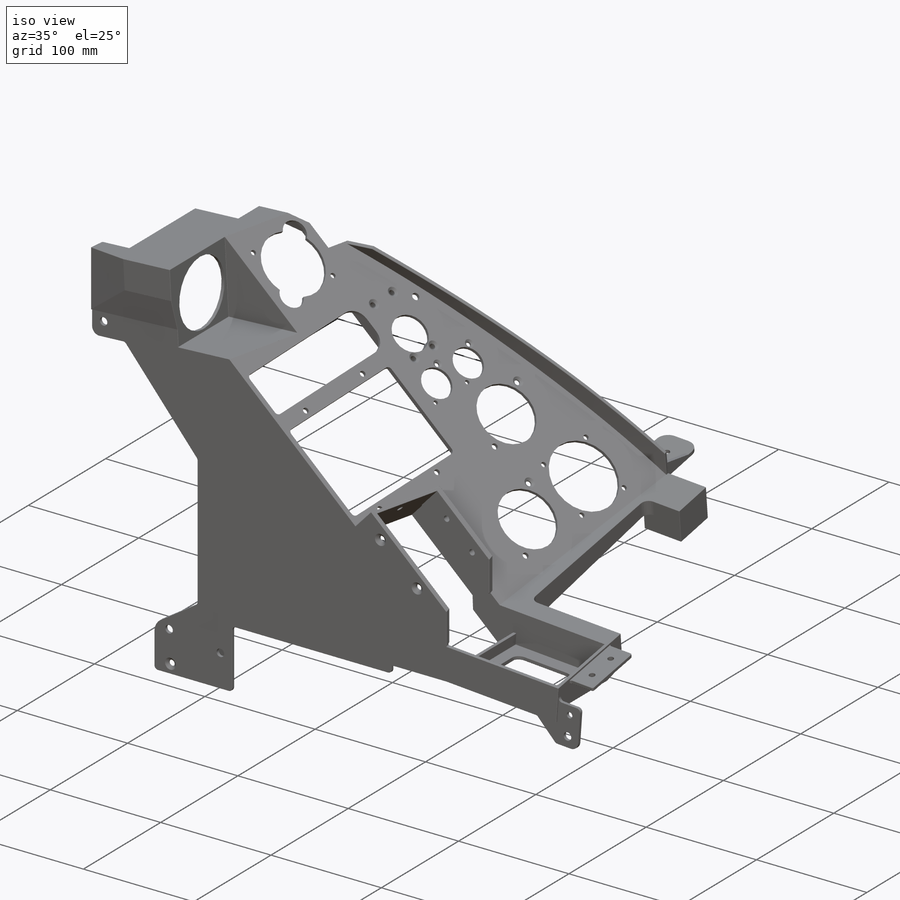
[diagram: iso view]
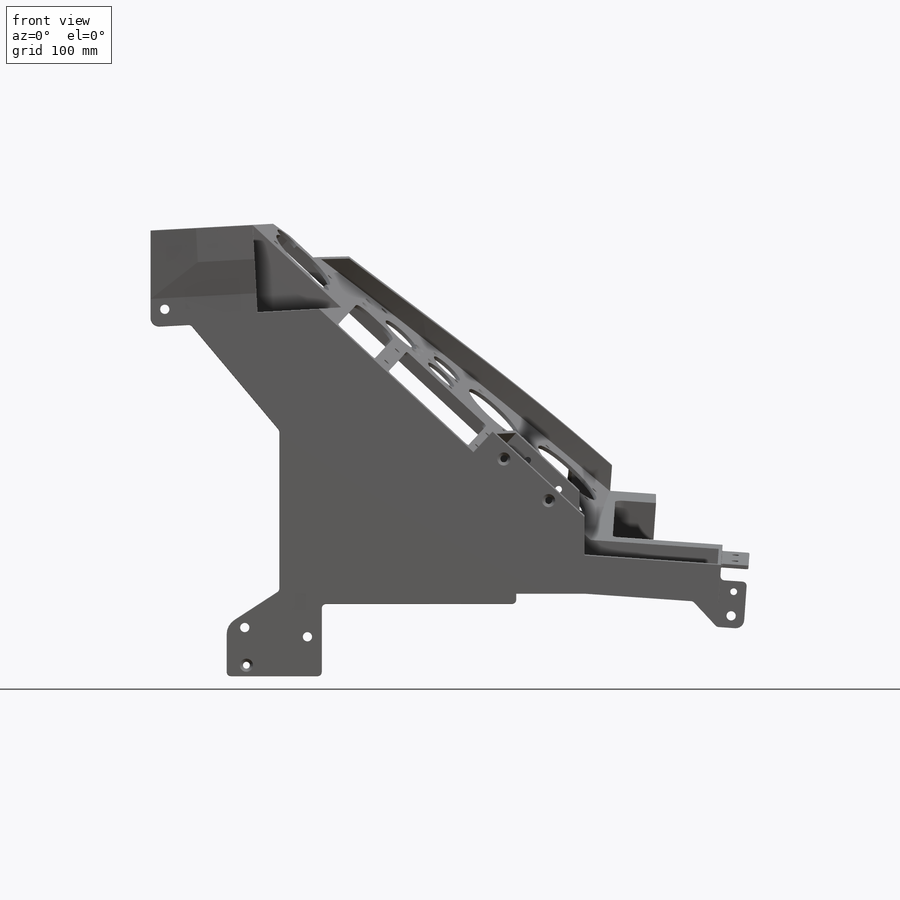
[diagram: front view]
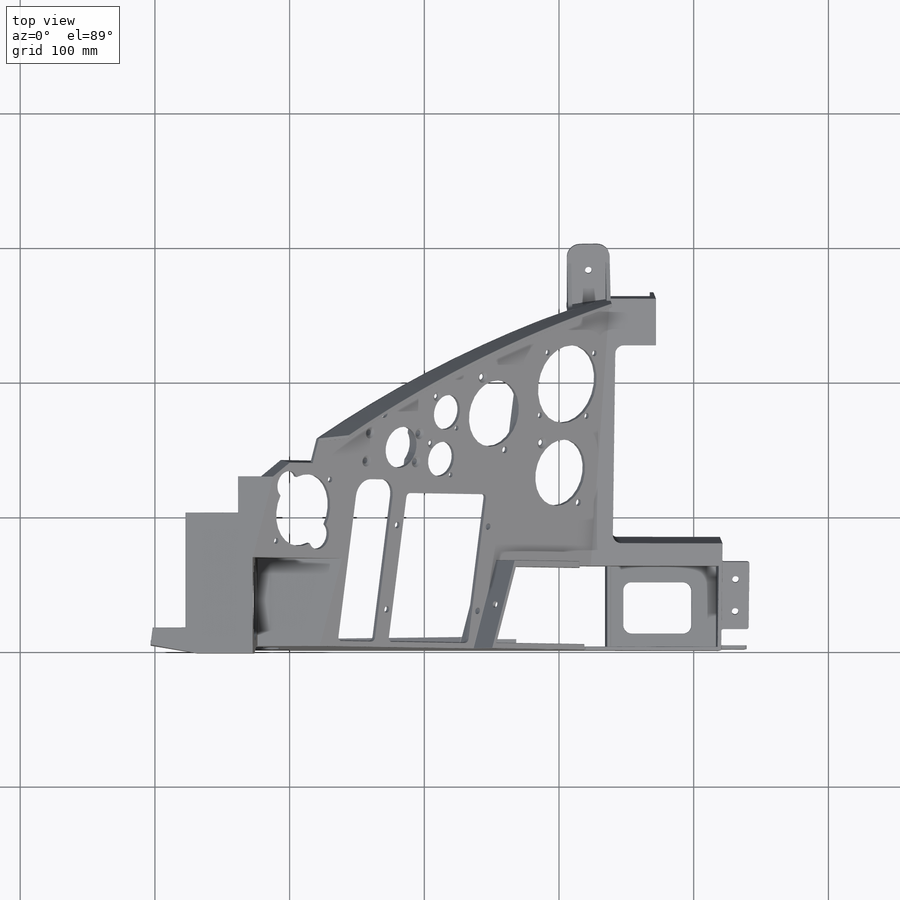
[diagram: top view]
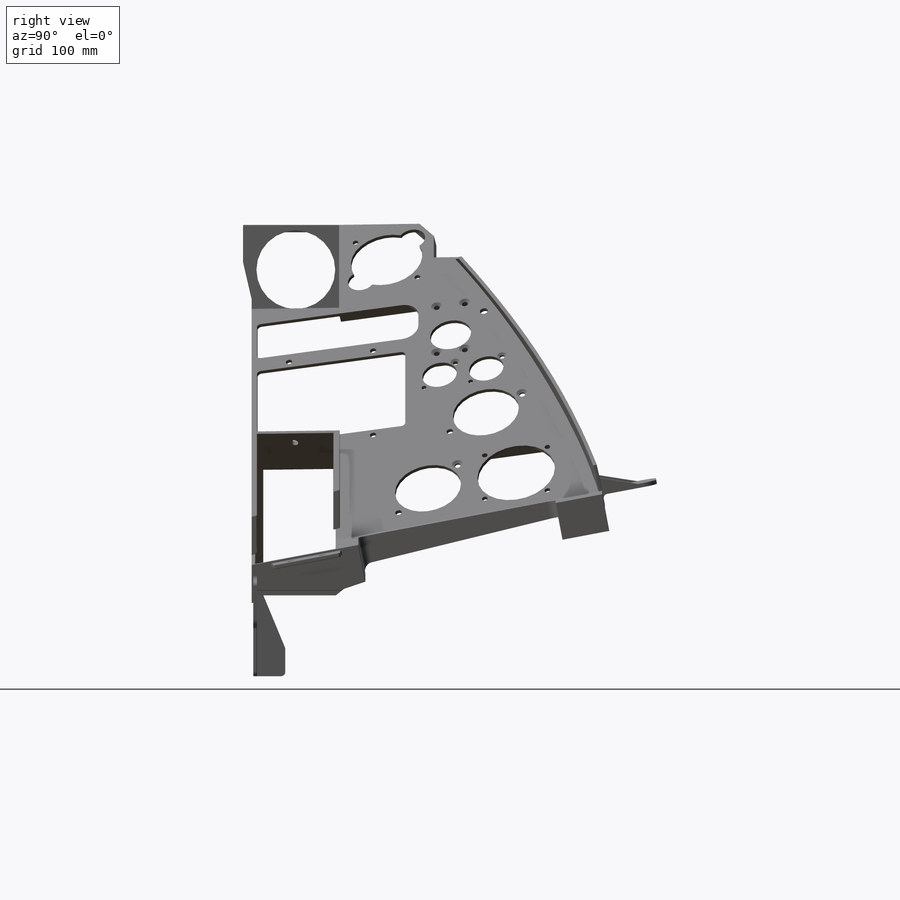
[diagram: right view]
SOLIDWORKS PART (.sldprt)
format: sldprt  version: not decoded by parser v0  size: 3,866,624 bytes
history: native  units: mm
features: sketch x111, fillet x45, extrude x38, cut_extrude x36, plane x34, hole x6, material x1, shell x1 (+23 scaffold rows collapsed)
feature tree (295):
  scaffold x23  (default folders/planes/origin — collapsed)
  material  "6061-T6 (SS)"
  sketch  "Sketch1"  dims[c1.D1=219.075mm c1.D2=211.963mm c1.D3=219.075mm c1.D6=211.963mm c2.D6=40.0deg c2.D10=183.388mm c3.D10=226.0deg c3.D11=196.85mm c4.D11=~42.972339deg c5.D11=~50.636507mm c6.D11=~97.884509deg c7.D11=~51.119763mm c8.D11=90.0deg c8.D8=64.8843mm c8.D13=~143.740842mm c9.D13=90.0deg c9.D7=64.8843mm c10.D7=270.0deg c10.D6=~184.174159mm c11.D6=40.0deg c11.D7=~46.171927mm c12.D7=90.0deg c12.D9=64.8843mm c13.D9=90.0deg c13.D11=~75.920611mm c14.D11=~93.027661deg c14.D2=211.455mm c15.D11=~22.864984mm c15.D2=196.85mm c16.D2=~317.106921deg c17.D2=196.85mm c18.D2=~42.893079deg c18.D11=~75.834013mm c19.D11=~93.106921deg c20.D11=101.6mm c20.D12=101.6mm c21.D12=~35.469793deg c22.D12=~13.12658mm c23.D12=176.0deg c23.D3=28.575mm c23.D4=22.225mm c23.D5=123.825mm c23.D7=46.1645mm c23.D8=64.8335mm c23.D9=78.3082mm c24.D12=46.1645mm c24.D9=78.2574mm c24.D7=78.2574mm c24.D13=21.1201mm]
  sketch  "3DSketch3"  dims[c1.D1=~59.225985mm c2.D1=~29.584253deg c2.D2=10.0deg]
  plane  "Plane10"
  sketch  "Sketch18"  dims[c1.D1=~20.219445mm c2.D1=10.4deg]
  plane  "Plane13"
  sketch  "Sketch27"
  plane  "Plane14"
  sketch  "Sketch28"  dims[c1.D1=~103.071212mm c2.D1=10.68deg]
  sketch  "Sketch29"  dims[D1=0.0mm D2=0.0mm D3=0.0mm D4=50.8mm]
  extrude  "Main Solid Extrusion"  Depth=264.668mm
  sketch  "Sketch30"  dims[D1=0.0mm]
  extrude  "Bottom Solid Extrusion"  [1 undecoded]
  sketch  "Sketch32"
  cut_extrude  "Top Solid Extrusion"  [1 undecoded]
  sketch  "Sketch31"  dims[D2=64.8843mm D1=0.0mm]
  extrude  "Compass Solid Extrusion"  [1 undecoded]
  sketch  "Sketch33"  dims[D1=0.0mm D2=12.7mm]
  cut_extrude  "Compass Cut"  [1 undecoded]
  sketch  "Sketch42"  dims[c1.D3=~65.506174mm c2.D3=10.0deg c2.D4=~68.759082mm c3.D4=10.0deg c3.D5=~268.691304mm c4.D4=~67.445651mm c4.D3=~92.526105mm c5.D3=100.0deg c5.D4=112.8014mm c5.D5=~112.64689mm c6.D5=80.0deg c7.D5=~67.445651mm c8.D5=10.0deg c8.D1=66.421mm c8.D2=0.0mm c9.D5=112.0394mm c9.D2=0.0mm]
  extrude  "Stick Seat Extrusion"  Depth=20.828mm
  sketch  "Sketch55"  dims[D1=0.0mm D2=0.0mm]
  cut_extrude  "Extrude27"  [1 undecoded]
  sketch  "Sketch57"  dims[D1=17.7165mm D2=81.7372mm D3=0.0mm D4=148.8821mm]
  cut_extrude  "Extrude29"  [1 undecoded]
  sketch  "Sketch60"
  cut_extrude  "Extrude31"  [1 undecoded]
  plane  "Compass Bump Plane"  Offset=6.35mm
  sketch  "Sketch62"  dims[D1=0.0mm D2=25.4mm D3=42.2021mm D4=0.0mm]
  sketch  "Sketch63"  dims[D1=0.0mm]
  sketch  "3DSketch5"
  sketch  "Sketch66"  dims[D4=39.116mm D1=50.0126mm D2=104.2797mm D3=19.05mm D5=0.0mm D6=2.54mm D7=12.7mm]
  cut_extrude  "Extrude34"  [1 undecoded]
  sketch  "Sketch73"  dims[D1=34.4424mm]
  cut_extrude  "Extrude45"  [1 undecoded]
  shell  "Shell3"  Thickness=2.794mm
  plane  "Plane15"
  sketch  "Sketch83"  dims[D1=20.32mm D2=12.7mm]
  cut_extrude  "Extrude62"  [1 undecoded]
  sketch  "Sketch56"  dims[c1.D1=0.0mm c1.D2=0.0mm c1.D3=0.0mm c2.D1=0.0mm c2.D2=0.0mm]
  cut_extrude  "Extrude28"  [1 undecoded]
  sketch  "3DSketch4"
  cut_extrude  "Extrude26"  [1 undecoded]
  sketch  "Sketch64"  dims[c1.D1=58.5089mm c1.D2=58.5089mm c1.D3=58.5089mm c2.D2=~33.31845mm c2.D3=32.131mm]
  cut_extrude  "Compass Hole cut"  [1 undecoded]
  sketch  "Sketch70"  dims[D1=19.05mm D2=15.875mm D3=84.4804mm D4=2.794mm D5=6.35mm D6=2.794mm]
  extrude  "Extrude47"  [1 undecoded]
  sketch  "Sketch75"
  cut_extrude  "Extrude48"  [1 undecoded]
  sketch  "Sketch77"  dims[D1=2.794mm]
  extrude  "Extrude56"  [1 undecoded]
  sketch  "Sketch79"
  extrude  "Extrude57"  [1 undecoded]
  sketch  "Sketch80"
  extrude  "Extrude58"  Depth=2.794mm
  sketch  "Sketch81"  dims[c1.D2=~22.516234mm c2.D2=~47.106921deg c2.D1=~32.767376mm c3.D1=45.0deg c4.D1=15.875mm]
  extrude  "Extrude59"  Depth=2.794mm
  sketch  "Sketch82"  dims[D1=12.7mm D2=12.7mm D3=38.1mm D4=50.8mm]
  cut_extrude  "Extrude60"  [1 undecoded]
  plane  "Plane1 Grid Vertical Measurement"
  plane  "Plane Normal 0"
  plane  "Plane Normal # 0.5"  Offset=12.7mm
  plane  "Plane Normal #1"  Offset=25.4mm
  plane  "Plane Normal #1.5"  Offset=38.1mm
  plane  "Plane Normal #2.0"  Offset=50.8mm
  plane  "Plane Normal #2.5"  Offset=63.5mm
  plane  "Plane Normal #3.0"  Offset=76.2mm
  plane  "Plane Normal #3.5"  Offset=88.9mm
  plane  "Plane Normal #4.0"  Offset=101.6mm
  plane  "Plane Normal #4.5"  Offset=114.3mm
  plane  "Plane Normal #5.0"  Offset=127mm
  plane  "Plane Normal #5.5"  Offset=139.7mm
  plane  "Plane Normal #6.0"  Offset=152.4mm
  plane  "Plane Normal #6.5"  Offset=165.1mm
  plane  "Plane Normal #7.0"  Offset=177.8mm
  plane  "Plane Normal #-0.5"  Offset=12.7mm
  plane  "Plane Normal #-1.0"  Offset=25.4mm
  plane  "Plane Normal #-1.5"  Offset=38.1mm
  plane  "Plane Normal #-2.0"  Offset=50.8mm
  plane  "Plane Normal #-2.5"  Offset=63.5mm
  plane  "Plane Normal #-3.0"  Offset=76.2mm
  plane  "Plane Normal #-3.5"  Offset=88.9mm
  sketch  "Grid Vertical Measurement"  dims[c1.D1=234.6452mm c1.D2=232.6132mm c1.D3=232.6132mm c2.D2=238.3028mm c2.D3=242.5065mm c2.D4=246.2149mm c2.D5=249.5677mm c2.D6=253.365mm c2.D7=256.3241mm c2.D8=259.3975mm c2.D9=263.9441mm c2.D10=229.5525mm c2.D11=225.0313mm c2.D12=220.7387mm c2.D13=214.7316mm c2.D14=209.7405mm c2.D15=204.1144mm c2.D16=198.9074mm c2.D17=193.4591mm c2.D18=188.1886mm c2.D19=182.0545mm c2.D20=175.6537mm c2.D21=168.9735mm c2.D22=163.0172mm c2.D23=156.1338mm c2.D24=163.0172mm c3.D9=153.3652mm c3.D24=153.3652mm c4.D9=153.3652mm c4.D2=12.7mm c4.D23=12.7mm c4.D24=12.7mm c5.D9=4.572mm]
  sketch  "Sketch124"
  cut_extrude  "Main Surface Cut"  [1 undecoded]
  sketch  "Sketch125"  dims[c1.D2=~48.663178mm c2.D2=~131.050469deg c3.D2=~48.663178mm c4.D2=135.0deg c4.D1=71.5645mm]
  cut_extrude  "Extrude91"  [1 undecoded]
  sketch  "Sketch84"  dims[D1=2.794mm]
  sketch  "Sketch85"
  extrude  "Extrude65"  [1 undecoded]
  sketch  "Sketch89"
  extrude  "Extrude92"  [1 undecoded]
  sketch  "Sketch127"  dims[D1=2.794mm]
  sketch  "3DSketch7"
  fillet  "Fillet66"  Radius=6.35mm
  sketch  "Sketch128"
  extrude  "Extrude93"  [1 undecoded]
  sketch  "Sketch110"  dims[c1.D1=31.75mm c1.D2=40.9321mm c1.D3=2.794mm c1.D4=2.794mm c2.D3=2.794mm]
  extrude  "Extrude74"  Depth=3.048mm
  sketch  "Sketch111"
  extrude  "Extrude75"  [1 undecoded]
  sketch  "Sketch112"  dims[D1=12.7mm D2=26.924mm D3=26.924mm]
  extrude  "Extrude76"  Depth=3.048mm
  sketch  "Sketch113"  dims[D1=0.0mm]
  extrude  "Extrude77"  Depth=3.048mm
  fillet  "Fillet1"  Radius=9.525mm
  sketch  "Sketch115"  dims[D1=2.794mm]
  extrude  "Extrude81"  [1 undecoded]
  sketch  "Sketch117"  dims[D1=4.0132mm]
  sketch  "Sketch120"  dims[D1=19.05mm]
  extrude  "Extrude94"  Depth=2.54mm
  sketch  "3DSketch8"
  cut_extrude  "Extrude96"  [1 undecoded]
  fillet  "Fillet4"  Radius=3.175mm
  fillet  "Fillet5"  Radius=3.175mm
  fillet  "Fillet6"  Radius=3.175mm
  fillet  "Fillet7"  Radius=3.175mm
  sketch  "Sketch131"  dims[D1=11.8618mm D2=2.794mm]
  extrude  "Extrude98"  Depth=12.7mm
  sketch  "Sketch135"
  extrude  "Extrude104"  [1 undecoded]
  sketch  "Sketch138"  dims[c1.D1=~21.282142mm c2.D1=45.0deg c3.D1=~18.30576mm c4.D1=45.0deg c5.D1=~14.445307mm c6.D1=45.0deg c7.D1=~17.791405mm c8.D1=45.0deg c8.D2=5.08mm]
  cut_extrude  "Extrude107"  [1 undecoded]
  sketch  "Sketch140"  dims[D1=2.794mm]
  extrude  "Extrude108"  [1 undecoded]
  sketch  "Sketch136"
  extrude  "Extrude105"  [1 undecoded]
  sketch  "Sketch216"
  extrude  "Extrude149"  Depth=4.0767mm
  sketch  "Sketch217"
  extrude  "Extrude150"  Depth=4.6482mm
  sketch  "Sketch221"
  cut_extrude  "Extrude153"  [1 undecoded]
  sketch  "Sketch143"  dims[D1=60.706mm]
  extrude  "Extrude115"  [1 undecoded]
  sketch  "Sketch144"  dims[D1=0.0mm]
  extrude  "Extrude116"  [1 undecoded]
  sketch  "Sketch145"  dims[c1.D1=109.22mm c1.D2=~154.756115mm c1.D3=~14.377907mm c2.D3=30.0deg c2.D4=~147.980868mm c2.D5=5.969mm c3.D4=2.667mm c3.D5=17.8308mm c3.D6=104.14mm c3.D7=2.794mm c3.D1=2.794mm c3.D2=124.0409mm c3.D3=2.794mm c4.D4=2.794mm c4.D1=2.54mm c5.D4=2.794mm]
  extrude  "Extrude117"  Depth=7.5565mm
  sketch  "Sketch146"  dims[c1.D1=~10.037783mm c2.D1=45.0deg c3.D1=~10.686505mm c4.D1=45.0deg]
  cut_extrude  "Extrude118"  [1 undecoded]
  sketch  "Sketch148"  dims[D1=0.0mm]
  extrude  "Extrude122"  [1 undecoded]
  sketch  "Sketch149"  dims[D1=0.0mm]
  extrude  "Extrude123"  [1 undecoded]
  sketch  "Sketch151"  dims[D1=0.0mm]
  extrude  "Extrude124"  [1 undecoded]
  sketch  "Sketch152"  dims[D1=0.0mm]
  extrude  "Extrude125"  [1 undecoded]
  sketch  "Sketch158"
  sketch  "Sketch160"
  extrude  "Extrude129"  [1 undecoded]
  plane  "Tap/Rim Plane"  Offset=1.27mm
  sketch  "Sketch162"  dims[D1=20.8788mm D2=50.8mm D3=2.2352mm D4=23.9014mm D5=17.78mm D6=19.9136mm D7=19.05mm]
  extrude  "Extrude130"  Depth=2.794mm
  sketch  "Sketch164"  dims[D1=2.794mm D2=2.794mm]
  extrude  "Extrude131"  Depth=5.8547mm
  sketch  "Sketch165"  dims[D1=0.0mm]
  extrude  "Extrude132"  [1 undecoded]
  fillet  "Fillet14"  Radius=0.79375mm
  fillet  "Fillet15"  Radius=0.79375mm
  fillet  "Fillet16"  Radius=0.79375mm
  fillet  "Fillet17"  Radius=0.79375mm
  fillet  "Fillet19"  Radius=3.175mm
  sketch  "Sketch166"  dims[D1=2.794mm D2=20.7645mm]
  extrude  "Extrude133"  [1 undecoded]
  plane  "Lower Corner Tab Plane"  Offset=1.9431mm
  sketch  "Sketch227"  dims[D1=20.32mm D2=15.621mm D3=50.8mm]
  extrude  "Extrude157"  Depth=3.0734mm
  fillet  "Fillet20"  Radius=3.175mm
  fillet  "Fillet21"  Radius=12.7mm
  fillet  "Fillet35"  Radius=6.35mm
  fillet  "Fillet36"  Radius=3.175mm
  fillet  "Fillet37"  Radius=6.35mm
  fillet  "Fillet38"  Radius=3.175mm
  fillet  "Fillet39"  Radius=3.175mm
  fillet  "Fillet40"  Radius=0.396875mm
  fillet  "Fillet42"  Radius=6.35mm
  fillet  "Fillet64"  Radius=1.5875mm
  fillet  "Fillet65"  Radius=0.396875mm
  fillet  "Fillet68"  Radius=6.35mm
  sketch  "Sketch211"  dims[D3=6.858mm D1=10.668mm D2=29.2862mm D4=13.4112mm D5=36.1442mm]
  cut_extrude  "Corner Tab Screw Holes"  [1 undecoded]
  hole  "Corner Tab Counter Sink Screw Hole"  Diameter=5.1054mm Depth=2.794mm
  sketch  "3DSketch18"  dims[D1=8.1788mm D2=14.6304mm]
  sketch  "Sketch212"  dims[hole-wizard template sketch: 55 standard entries collapsed; hole parameters kept: c17.Thru Hole Depth=2.794mm c17.Near C'Sink Dia.=9.779mm c17.D4=~3.666174mm c17.Near C'Sink Angle=100.0deg]
  sketch  "Sketch213"  dims[D1=6.858mm D2=10.541mm D3=12.6365mm]
  cut_extrude  "Top Corner Tab Screw Hole"  [1 undecoded]
  sketch  "Sketch214"  dims[D1=5.0038mm D2=19.4818mm]
  cut_extrude  "Outside Corner Tab Screw Hole"  [1 undecoded]
  sketch  "Sketch215"  dims[D3=5.0292mm D4=6.858mm D5=25.9334mm D6=9.9314mm D1=9.271mm D2=7.9502mm]
  cut_extrude  "Lower Corner Tab Screw Holes"  [1 undecoded]
  hole  "Outside Counter Sink for Stick"  Diameter=5.1054mm Depth=4.0767mm
  sketch  "3DSketch19"  dims[D1=9.3472mm D2=9.3472mm D3=20.193mm D4=45.4025mm]
  sketch  "Sketch224"  dims[hole-wizard template sketch: 55 standard entries collapsed; hole parameters kept: c17.Thru Hole Depth=4.0767mm c17.Near C'Sink Dia.=9.779mm c17.D4=~3.666174mm c17.Near C'Sink Angle=100.0deg]
  sketch  "Sketch225"  dims[c1.D3=4.9784mm c1.D4=4.9784mm c1.D5=31.369mm c1.D6=1.0795mm c1.D1=10.16mm c1.D2=22.225mm c2.D3=44.45mm]
  cut_extrude  "Inside Stick Screw Holes"  [1 undecoded]
  sketch  "Sketch226"  dims[c1.D1=4.9784mm c1.D2=~7.712894mm c2.D1=9.525mm c2.D3=~33.892162mm c2.D2=10.4394mm]
  cut_extrude  "Top Stick Screw Hole"  [1 undecoded]
  sketch  "Sketch228"  dims[c1.D1=4.9784mm c1.D2=4.9784mm c2.D1=12.0396mm]
  cut_extrude  "Extrude158"  [1 undecoded]
  plane  "Plane Normal Start"
  plane  "Plane Normal End"
  sketch  "Main Surface Grid"  dims[c1.D1=~234.621382mm c2.D1=90.0deg c2.D2=~12.525081mm]
  sketch  "Side Rim Station Start"  dims[c1.D1=~19.165506mm c2.D1=97.0deg c2.D2=15.3543mm]
  sketch  "Side Rim Station 0"  dims[c1.D1=~94.140158mm c2.D1=90.0deg c2.D2=16.383mm]
  sketch  "Side Rim Station 3.5"  dims[c1.D1=~202.931175mm c2.D1=83.0deg c2.D2=15.3543mm]
  sketch  "Side Rim Station End"  dims[c1.D1=~64.792934mm c2.D1=75.0deg c2.D2=15.3543mm]
  sketch  "3DSketch9"
  sketch  "Sketch181"
  plane  "Plane44"
  plane  "Plane45"  Offset=2.794mm
  sketch  "Sketch189"  dims[c1.D3=111.9378mm c1.D2=6.1468mm c2.D3=80.6958mm c2.D4=10.414mm c2.D1=4.064mm c2.D2=10.414mm c3.D3=111.9378mm]
  cut_extrude  "Caution Light Cutout"  [1 undecoded]
  sketch  "Sketch223"  dims[c1.D2=4.7625mm c1.D3=4.7625mm c1.D4=4.7625mm c1.D5=4.7625mm c1.D1=91.9607mm c2.D2=31.75mm]
  fillet  "Fillet27"  Radius=3.175mm
  sketch  "Sketch190"  dims[c1.D2=37.084mm c1.D3=121.8692mm c1.D1=13.716mm c1.D4=34.8742mm c1.D5=11.0998mm c2.D1=14.0208mm c2.D2=121.8692mm c3.D1=14.0208mm c3.D2=36.8808mm c4.D1=34.8742mm]
  cut_extrude  "FuelSel Cutout"  [1 undecoded]
  fillet  "Fillet25"  Radius=3.175mm
  fillet  "Fillet24"  Radius=12.7mm
  sketch  "FuelSel Screw Hole Sketch"  dims[c1.D4=5.9944mm c1.D3=11.0998mm c2.D4=~30.774299mm c2.D1=50.165mm c2.D2=50.165mm c3.D1=13.716mm c3.D2=34.8742mm c3.D4=25.1206mm]
  sketch  "Sketch202"  dims[D1=5.9944mm]
  cut_extrude  "FuelSel Dzus Hole"  [1 undecoded]
  sketch  "Sketch196"  dims[c1.D2=30.9372mm c1.D1=23.9268mm c2.D2=20.955mm]
  cut_extrude  "Oxygen Flow Cutout"  [1 undecoded]
  sketch  "Sketch203"  dims[c1.D3=30.9372mm c1.D1=35.0774mm c1.D2=12.5222mm c2.D3=3.5814mm c2.D4=12.5222mm]
  extrude  "Oxygen Flow Meter Screw backing block"  Depth=4.7625mm
  hole  "Oxygen Flow Meeter Screw hole"  Diameter=4.4958mm Depth=10.3505mm
  sketch  "3DSketch13"
  sketch  "Sketch201"  dims[hole-wizard template sketch: 55 standard entries collapsed; hole parameters kept: c17.Thru Hole Depth=10.3505mm c17.Near C'Sink Dia.=8.4328mm c17.D4=~3.666174mm c17.Near C'Sink Angle=100.0deg]
  sketch  "Sketch191"  dims[c1.D1=53.975mm c1.D2=20.2057mm c1.D3=20.2057mm c1.D4=66.04mm c1.D5=66.04mm c1.D6=4.2672mm c1.D7=4.2672mm c2.D5=33.02mm c3.D5=45.0deg]
  cut_extrude  "Chronograph Cutout"  [1 undecoded]
  sketch  "Sketch192"  dims[D2=26.035mm D4=26.035mm D6=33.274mm D7=33.274mm D8=3.6322mm D3=25.9207mm D5=35.2171mm D1=30.353mm]
  cut_extrude  "Hydraulic Gauge Cutout"  [1 undecoded]
  sketch  "Hydraulic Gauge Screw Hole Sketch"
  hole  "Hydraulic Gauge Counter Sink Srew Holes"  Diameter=3.7973mm Depth=2.794mm
  sketch  "3DSketch15"
  sketch  "Sketch206"  dims[hole-wizard template sketch: 55 standard entries collapsed; hole parameters kept: c17.Thru Hole Depth=2.794mm c17.Near C'Sink Dia.=7.0866mm c17.D4=~3.666174mm c17.Near C'Sink Angle=100.0deg]
  sketch  "Sketch193"  dims[c1.D2=49.784mm c1.D3=62.6618mm c1.D4=62.6618mm c1.D5=4.9784mm c2.D4=~28.021227mm c3.D4=30.0deg c3.D1=60.8076mm]
  cut_extrude  "Liquid Oxygen Meter Cutout"  [1 undecoded]
  sketch  "Liquid Oxygen Meter Screw Hole Sketch"  dims[c1.D1=62.6618mm c1.D2=~27.691499mm c2.D2=30.0deg]
  hole  "Liquid Oxygen Meter Counter Sink Screw Hole"  Diameter=4.4958mm Depth=2.794mm
  sketch  "3DSketch16"
  sketch  "Sketch208"  dims[hole-wizard template sketch: 55 standard entries collapsed; hole parameters kept: c17.Thru Hole Depth=2.794mm c17.Near C'Sink Dia.=8.4328mm c17.D4=~3.666174mm c17.Near C'Sink Angle=100.0deg]
  sketch  "Sketch194"  dims[D3=49.784mm D4=62.6618mm D5=4.9784mm D1=71.8312mm D2=133.1214mm]
  cut_extrude  "EPU Cutout"  [1 undecoded]
  sketch  "EPU Screw Hole Sketch"
  hole  "CSK for #8 Flat Head Machine Screw (100)4"  Diameter=4.4958mm Depth=2.794mm
  sketch  "3DSketch17"
  sketch  "Sketch210"  dims[hole-wizard template sketch: 55 standard entries collapsed; hole parameters kept: c17.Thru Hole Depth=2.794mm c17.Near C'Sink Dia.=8.4328mm c17.D4=~3.666174mm c17.Near C'Sink Angle=100.0deg]
  sketch  "Sketch195"  dims[D1=58.4962mm D4=66.8274mm D5=4.2672mm D2=36.7157mm D3=66.5861mm]
  cut_extrude  "Cabin Pressure Alt Cutout"  [1 undecoded]
  fillet  "Fillet43"  Radius=0.396875mm
  cut_extrude  "Extrude154"  [1 undecoded]
  fillet  "Fillet44"  Radius=0.396875mm
  fillet  "Fillet46"  Radius=0.396875mm
  fillet  "Fillet47"  Radius=0.396875mm
  fillet  "Fillet48"  Radius=0.396875mm
  fillet  "Fillet49"  Radius=0.396875mm
  fillet  "Fillet51"  Radius=0.396875mm
  fillet  "Fillet52"  Radius=0.396875mm
  fillet  "Fillet53"  Radius=0.396875mm
  fillet  "Fillet54"  Radius=0.396875mm
  fillet  "Fillet56"  Radius=0.396875mm
  fillet  "Fillet57"  Radius=0.396875mm
  fillet  "Fillet58"  Radius=0.396875mm
  fillet  "Fillet60"  Radius=0.396875mm
  fillet  "Fillet61"  Radius=0.396875mm
  fillet  "Fillet62"  Radius=0.396875mm
  fillet  "Fillet63"  Radius=0.396875mm
  fillet  "Fillet69"  Radius=0.396875mm
  fillet  "Fillet71"  Radius=0.396875mm
decode coverage: 149 of 237 modeling features carry decoded parameters
note: ~ marks probable driven/reference dimensions
note: 58 parameter values undecoded
summary: no parameter record found for 58 features; Diameter pulled from absorbed wizard sketch
note: suppression state not decoded; provenance and decode notes live in map.json
